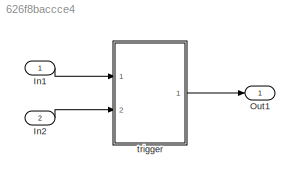
MODEL slx_626f8baccce4
KIND model
CONFIG AbsTol = auto
CONFIG EnableMultiTasking = off
CONFIG FixedStep = auto
CONFIG MaxStep = auto
CONFIG MinStep = auto
CONFIG RelTol = 1e-3
CONFIG SampleTimeConstraint = Unconstrained
CONFIG Solver = FixedStepDiscrete
CONFIG SolverName = FixedStepDiscrete
CONFIG StartTime = 0.0
CONFIG StopTime = 10.0
BLOCK [Inport] In1
  IconDisplay = Port number
BLOCK [Inport] In2
  IconDisplay = Port number
  Port = 2
BLOCK [Outport] Out1
  IconDisplay = Port number
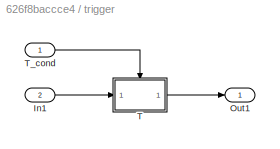
BLOCK [SubSystem] trigger
  AncestorBlock = Block_TestLib/trigger
  Ports = [2, 1]
  RequestExecContextInheritance = off
  Variant = off
BLOCK [Inport] trigger/In1
  IconDisplay = Port number
  Port = 2
BLOCK [Outport] trigger/Out1
  IconDisplay = Port number
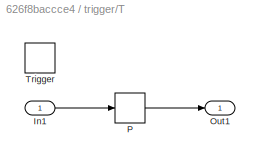
BLOCK [SubSystem] trigger/T
  Ports = [1, 1, 0, 1]
  RequestExecContextInheritance = off
  TreatAsAtomicUnit = on
  Variant = off
BLOCK [Inport] trigger/T/In1
  IconDisplay = Port number
BLOCK [Outport] trigger/T/Out1
  IconDisplay = Port number
BLOCK [DiscreteFir] trigger/T/P
  Coefficients = [1.3]
  InputPortMap = u0
  LockScale = on
  OutDataTypeStr = uint16
  OutputPortMap = o0
  Ports = [1, 1]
  RndMeth = Simplest
BLOCK [TriggerPort] trigger/T/Trigger
  Ports = []
  StatesWhenEnabling = held
  VariantControl = Variant
BLOCK [Inport] trigger/T_cond
  IconDisplay = Port number
  OutDataTypeStr = boolean
LINE In1:1 -> trigger:1
LINE In2:1 -> trigger:2
LINE trigger:1 -> Out1:1
